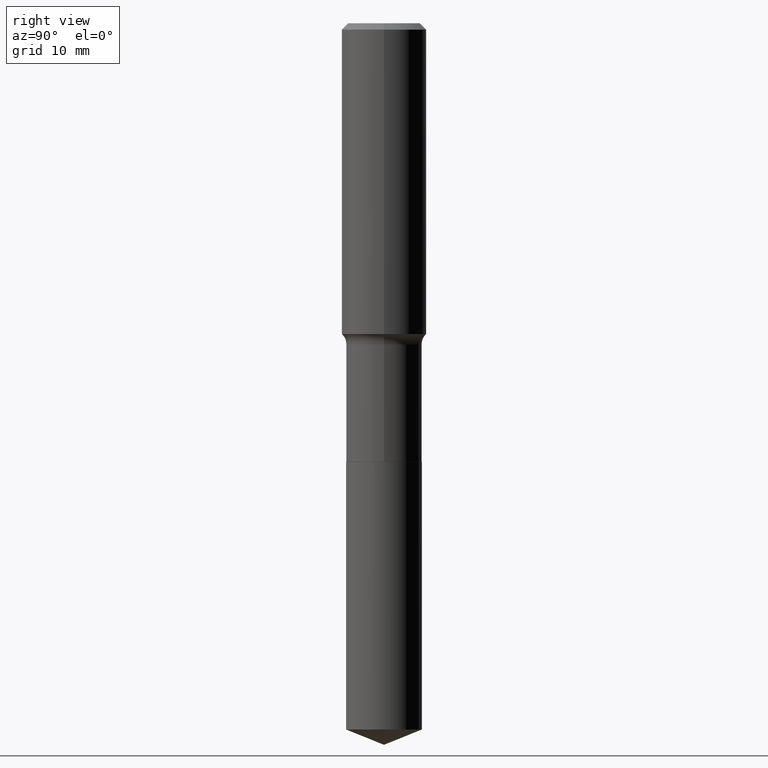
[diagram: clean part render]
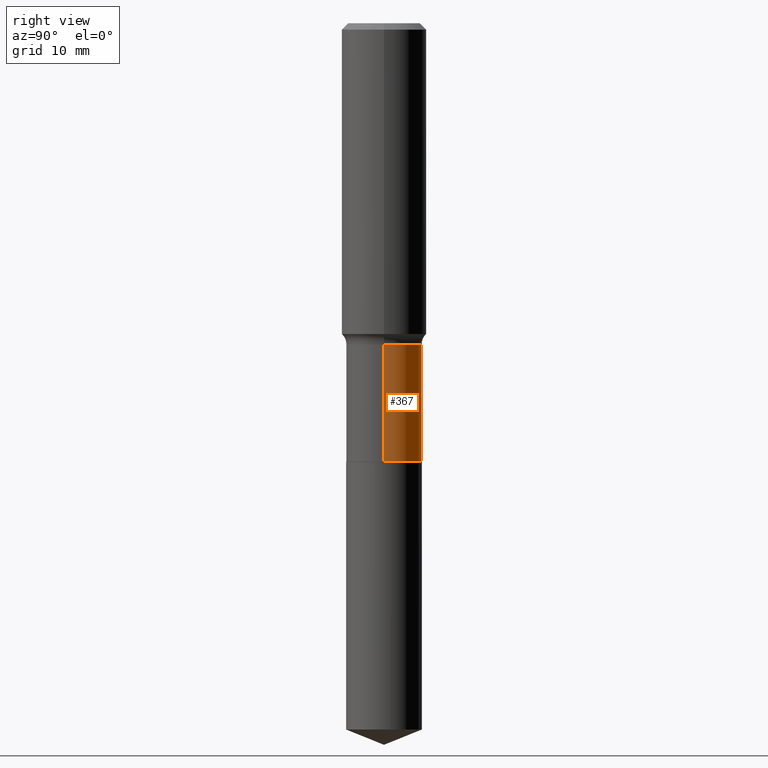
[diagram: same view with one face highlighted and labeled with its STEP entity id]
A machine part, right view. The second image highlights one B-rep face of the part: STEP entity #367.
In plain terms, the highlighted cylindrical surface (partial cylindrical patch) has radius 5.3505 mm, axis along (-0, 0, 1).
Its self-contained STEP definition (entity closure, byte-faithful):
#2 = ORIENTED_EDGE ( 'NONE', *, *, #305, .T. ) ;
#4 = CARTESIAN_POINT ( 'NONE',  ( 0.000000000000000000, 0.000000000000000000, 0.000000000000000000 ) ) ;
#6 = CIRCLE ( 'NONE', #222, 0.2106499999999999484 ) ;
#31 = EDGE_CURVE ( 'NONE', #173, #39, #389, .T. ) ;
#39 = VERTEX_POINT ( 'NONE', #122 ) ;
#46 = DIRECTION ( 'NONE',  ( -2.445468806185136597E-29, 3.491481338843145583E-15, 1.000000000000000000 ) ) ;
#99 = LINE ( 'NONE', #289, #238 ) ;
#122 = CARTESIAN_POINT ( 'NONE',  ( 0.2106499999999999484, -7.710587388701196730E-15, -1.787099999999999911 ) ) ;
#135 = DIRECTION ( 'NONE',  ( -2.445468806185136597E-29, 3.491481338843145583E-15, 1.000000000000000000 ) ) ;
#137 = DIRECTION ( 'NONE',  ( -2.445468806185136597E-29, 3.491481338843145583E-15, 1.000000000000000000 ) ) ;
#150 = CIRCLE ( 'NONE', #160, 0.2106500000000000039 ) ;
#160 = AXIS2_PLACEMENT_3D ( 'NONE', #411, #137, #330 ) ;
#173 = VERTEX_POINT ( 'NONE', #471 ) ;
#190 = EDGE_CURVE ( 'NONE', #173, #234, #150, .T. ) ;
#206 = CARTESIAN_POINT ( 'NONE',  ( 0.2106499999999999762, -1.470961088054611958E-15, 1.027166637821413806E-29 ) ) ;
#215 = EDGE_CURVE ( 'NONE', #39, #344, #6, .T. ) ;
#222 = AXIS2_PLACEMENT_3D ( 'NONE', #292, #135, #483 ) ;
#234 = VERTEX_POINT ( 'NONE', #325 ) ;
#238 = VECTOR ( 'NONE', #443, 39.37007874015748143 ) ;
#287 = DIRECTION ( 'NONE',  ( -2.445468806185136877E-29, 3.491481338843145188E-15, 1.000000000000000000 ) ) ;
#289 = CARTESIAN_POINT ( 'NONE',  ( -0.2106499999999999762, 1.496758272878650872E-15, -1.036173676762195916E-29 ) ) ;
#292 = CARTESIAN_POINT ( 'NONE',  ( 4.370297303533457201E-29, -6.239626300646584969E-15, -1.787099999999999911 ) ) ;
#304 = FACE_OUTER_BOUND ( 'NONE', #349, .T. ) ;
#305 = EDGE_CURVE ( 'NONE', #234, #344, #99, .T. ) ;
#306 = ORIENTED_EDGE ( 'NONE', *, *, #190, .T. ) ;
#308 = DIRECTION ( 'NONE',  ( 1.000000000000000000, -6.982962677686266711E-15, 4.876176775795935793E-29 ) ) ;
#325 = CARTESIAN_POINT ( 'NONE',  ( -0.2106500000000000039, -5.883360407101046752E-15, -2.440399999999999903 ) ) ;
#330 = DIRECTION ( 'NONE',  ( 1.000000000000000000, -6.982962677686265922E-15, 0.000000000000000000 ) ) ;
#337 = ORIENTED_EDGE ( 'NONE', *, *, #215, .F. ) ;
#344 = VERTEX_POINT ( 'NONE', #347 ) ;
#347 = CARTESIAN_POINT ( 'NONE',  ( -0.2106499999999999484, -5.883360407101046752E-15, -1.787099999999999911 ) ) ;
#348 = VECTOR ( 'NONE', #287, 39.37007874015748143 ) ;
#349 = EDGE_LOOP ( 'NONE', ( #306, #2, #337, #406 ) ) ;
#367 = ADVANCED_FACE ( 'NONE', ( #304 ), #458, .T. ) ;
#389 = LINE ( 'NONE', #206, #348 ) ;
#406 = ORIENTED_EDGE ( 'NONE', *, *, #31, .F. ) ;
#411 = CARTESIAN_POINT ( 'NONE',  ( 5.967922074614207358E-29, -8.520611059312812251E-15, -2.440399999999999903 ) ) ;
#420 = AXIS2_PLACEMENT_3D ( 'NONE', #4, #46, #308 ) ;
#443 = DIRECTION ( 'NONE',  ( -2.445468806185136877E-29, 3.491481338843145188E-15, 1.000000000000000000 ) ) ;
#458 = CYLINDRICAL_SURFACE ( 'NONE', #420, 0.2106499999999999762 ) ;
#471 = CARTESIAN_POINT ( 'NONE',  ( 0.2106500000000000039, -9.991572147367424012E-15, -2.440399999999999903 ) ) ;
#483 = DIRECTION ( 'NONE',  ( 1.000000000000000000, -6.982962677686267499E-15, 0.000000000000000000 ) ) ;